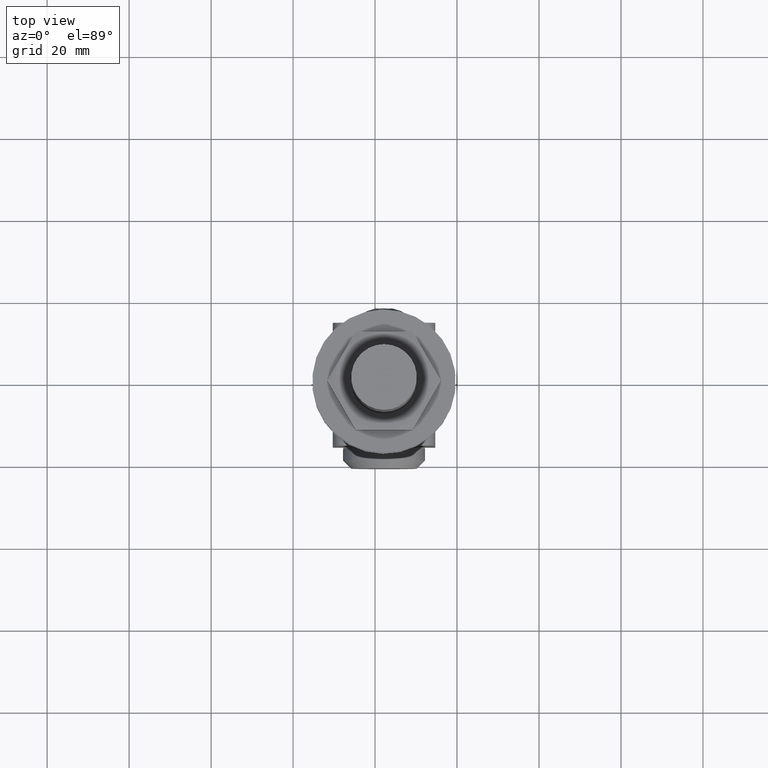
[diagram: clean part render]
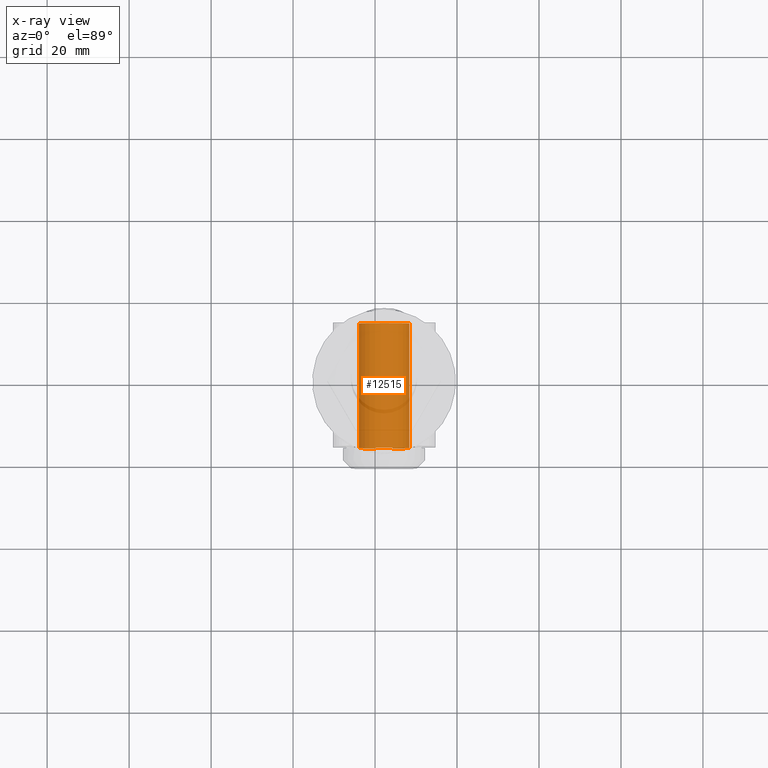
[diagram: x-ray — body ghosted, one internal face saturated and labeled with its STEP entity id]
A machine part, top view, then the same camera in x-ray: the body is ghosted and one INTERNAL B-rep face — a face not visible from any outside direction — is saturated and labeled: STEP entity #12515.
In plain terms, the highlighted cylindrical surface (bore or boss wall) has radius 6.15 mm, axis along (0, 1, -0).
Its self-contained STEP definition (entity closure, byte-faithful):
#30 = CARTESIAN_POINT ( 'NONE',  ( 8.673617379884035472E-16, 32.39999999999999858, 0.000000000000000000 ) ) ;
#71 = VERTEX_POINT ( 'NONE', #7463 ) ;
#418 = CARTESIAN_POINT ( 'NONE',  ( -6.150000000000002132, 35.39999999999999858, 0.000000000000000000 ) ) ;
#449 = DIRECTION ( 'NONE',  ( -1.000000000000000000, 0.000000000000000000, 0.000000000000000000 ) ) ;
#868 = DIRECTION ( 'NONE',  ( 2.677042401198776559E-17, 1.000000000000000000, -0.000000000000000000 ) ) ;
#908 = ORIENTED_EDGE ( 'NONE', *, *, #10252, .F. ) ;
#1073 = VERTEX_POINT ( 'NONE', #12398 ) ;
#1262 = ORIENTED_EDGE ( 'NONE', *, *, #3933, .F. ) ;
#1646 = DIRECTION ( 'NONE',  ( -1.000000000000000000, 0.000000000000000000, 0.000000000000000000 ) ) ;
#2113 = CARTESIAN_POINT ( 'NONE',  ( 2.000000000000000000, 8.000000000000000000, 5.815711478400561241 ) ) ;
#3670 = ORIENTED_EDGE ( 'NONE', *, *, #13935, .F. ) ;
#3803 = VERTEX_POINT ( 'NONE', #2113 ) ;
#3831 = EDGE_LOOP ( 'NONE', ( #3670, #16531, #9286, #10088, #908 ) ) ;
#3933 = EDGE_CURVE ( 'NONE', #4329, #4329, #9928, .T. ) ;
#4198 = DIRECTION ( 'NONE',  ( 0.000000000000000000, -1.000000000000000000, 0.000000000000000000 ) ) ;
#4329 = VERTEX_POINT ( 'NONE', #418 ) ;
#4363 = DIRECTION ( 'NONE',  ( 2.677042401198776559E-17, 1.000000000000000000, -0.000000000000000000 ) ) ;
#4645 = VECTOR ( 'NONE', #5807, 1000.000000000000000 ) ;
#5807 = DIRECTION ( 'NONE',  ( 2.677042401198776559E-17, 1.000000000000000000, -0.000000000000000000 ) ) ;
#5854 = CARTESIAN_POINT ( 'NONE',  ( 2.000000000000000000, 32.39999999999999858, 5.815711478400561241 ) ) ;
#5978 = AXIS2_PLACEMENT_3D ( 'NONE', #6498, #868, #16015 ) ;
#6498 = CARTESIAN_POINT ( 'NONE',  ( 9.476730100243670504E-16, 35.39999999999999858, 0.000000000000000000 ) ) ;
#6696 = DIRECTION ( 'NONE',  ( 2.677042401198776559E-17, 1.000000000000000000, -0.000000000000000000 ) ) ;
#6923 = CARTESIAN_POINT ( 'NONE',  ( 2.141633920959021001E-16, 8.000000000000000000, 0.000000000000000000 ) ) ;
#7282 = CARTESIAN_POINT ( 'NONE',  ( -2.000000000000000888, 8.000000000000000000, 5.815711478400560352 ) ) ;
#7463 = CARTESIAN_POINT ( 'NONE',  ( -2.000000000000000000, 4.999999999999997335, 5.815711478400560352 ) ) ;
#8043 = DIRECTION ( 'NONE',  ( 0.000000000000000000, 0.000000000000000000, -1.000000000000000000 ) ) ;
#8139 = LINE ( 'NONE', #5854, #4645 ) ;
#9081 = LINE ( 'NONE', #16135, #9276 ) ;
#9106 = AXIS2_PLACEMENT_3D ( 'NONE', #6923, #13634, #14957 ) ;
#9178 = VERTEX_POINT ( 'NONE', #7282 ) ;
#9276 = VECTOR ( 'NONE', #9645, 1000.000000000000000 ) ;
#9286 = ORIENTED_EDGE ( 'NONE', *, *, #16402, .T. ) ;
#9534 = CARTESIAN_POINT ( 'NONE',  ( 1.338521200599387448E-16, 4.999999999999997335, 0.000000000000000000 ) ) ;
#9645 = DIRECTION ( 'NONE',  ( 2.677042401198776559E-17, 1.000000000000000000, -0.000000000000000000 ) ) ;
#9928 = CIRCLE ( 'NONE', #5978, 6.150000000000003020 ) ;
#10088 = ORIENTED_EDGE ( 'NONE', *, *, #13060, .F. ) ;
#10252 = EDGE_CURVE ( 'NONE', #3803, #1073, #15129, .T. ) ;
#10614 = FACE_OUTER_BOUND ( 'NONE', #3831, .T. ) ;
#11005 = FACE_OUTER_BOUND ( 'NONE', #13067, .T. ) ;
#11551 = CIRCLE ( 'NONE', #14734, 6.150000000000003908 ) ;
#12398 = CARTESIAN_POINT ( 'NONE',  ( 2.141633920959022480E-16, 8.000000000000003553, 6.150000000000003020 ) ) ;
#12471 = CIRCLE ( 'NONE', #9106, 6.150000000000003020 ) ;
#12515 = ADVANCED_FACE ( 'NONE', ( #11005, #10614 ), #14955, .T. ) ;
#13060 = EDGE_CURVE ( 'NONE', #1073, #9178, #12471, .T. ) ;
#13067 = EDGE_LOOP ( 'NONE', ( #1262 ) ) ;
#13606 = VERTEX_POINT ( 'NONE', #13954 ) ;
#13634 = DIRECTION ( 'NONE',  ( 0.000000000000000000, -1.000000000000000000, 0.000000000000000000 ) ) ;
#13935 = EDGE_CURVE ( 'NONE', #13606, #3803, #8139, .T. ) ;
#13954 = CARTESIAN_POINT ( 'NONE',  ( 2.000000000000000000, 4.999999999999997335, 5.815711478400561241 ) ) ;
#14573 = AXIS2_PLACEMENT_3D ( 'NONE', #30, #6696, #449 ) ;
#14734 = AXIS2_PLACEMENT_3D ( 'NONE', #9534, #4363, #1646 ) ;
#14955 = CYLINDRICAL_SURFACE ( 'NONE', #14573, 6.150000000000003020 ) ;
#14957 = DIRECTION ( 'NONE',  ( 0.000000000000000000, 0.000000000000000000, -1.000000000000000000 ) ) ;
#15129 = CIRCLE ( 'NONE', #16650, 6.150000000000003020 ) ;
#15881 = EDGE_CURVE ( 'NONE', #13606, #71, #11551, .T. ) ;
#15935 = CARTESIAN_POINT ( 'NONE',  ( 2.141633920959021001E-16, 8.000000000000000000, 0.000000000000000000 ) ) ;
#16015 = DIRECTION ( 'NONE',  ( -1.000000000000000000, 0.000000000000000000, 0.000000000000000000 ) ) ;
#16135 = CARTESIAN_POINT ( 'NONE',  ( -2.000000000000000000, 32.39999999999999858, 5.815711478400560352 ) ) ;
#16402 = EDGE_CURVE ( 'NONE', #71, #9178, #9081, .T. ) ;
#16531 = ORIENTED_EDGE ( 'NONE', *, *, #15881, .T. ) ;
#16650 = AXIS2_PLACEMENT_3D ( 'NONE', #15935, #4198, #8043 ) ;